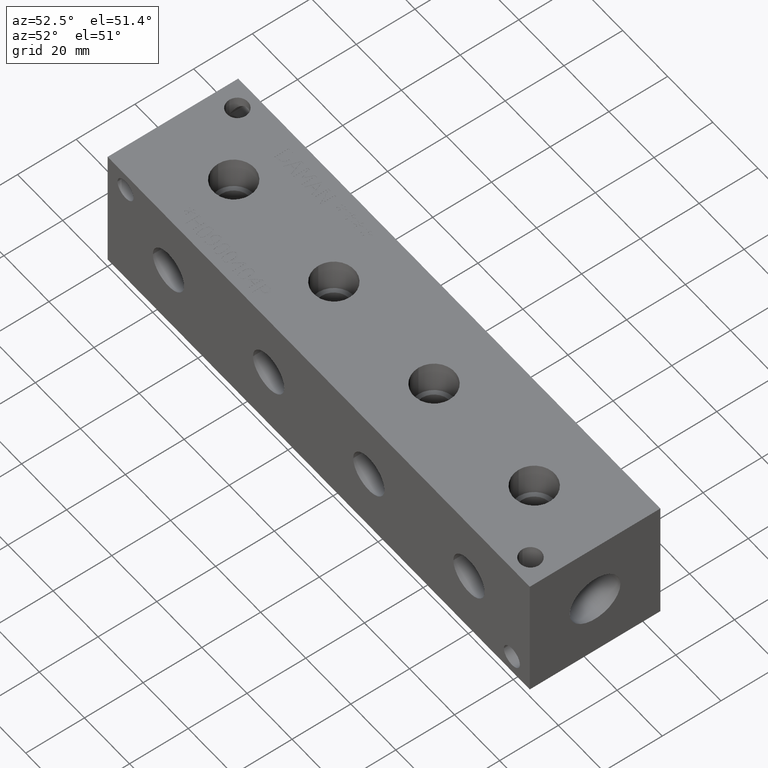
[diagram: clean part render]
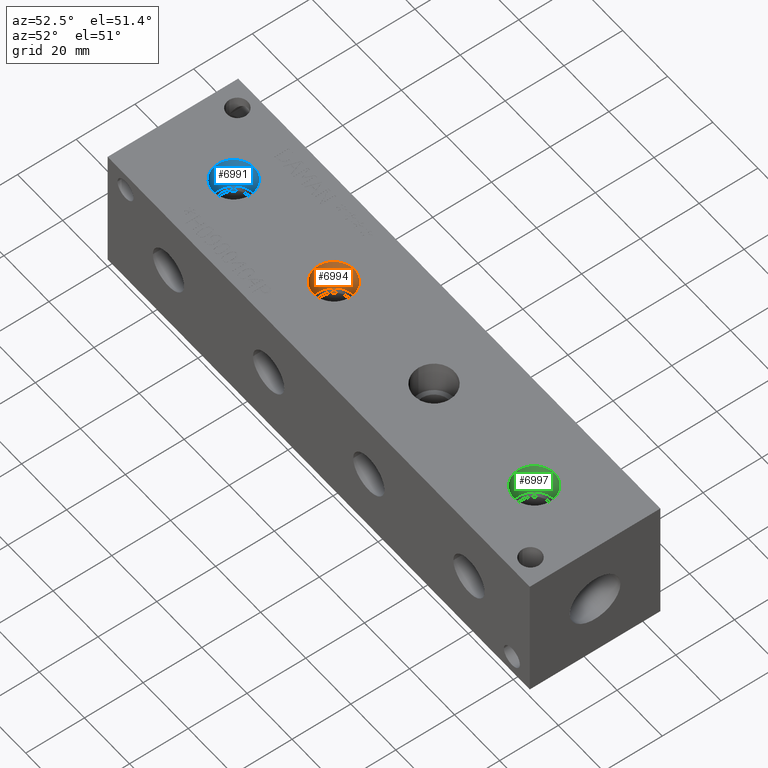
[diagram: same view with three faces highlighted in distinct colors, each labeled with its STEP entity id]
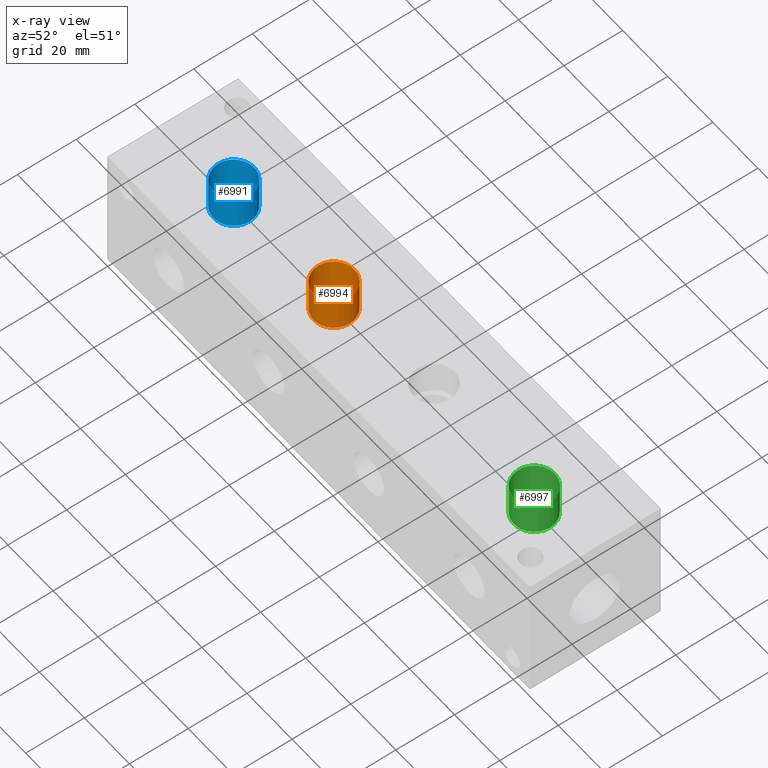
[diagram: x-ray of the same camera — body ghosted, the three highlighted faces saturated]
A machine part, auxiliary view with three faces highlighted in distinct colors.
The next image is the same camera in x-ray (body ghosted, the three faces saturated) — at least one of them is partly hidden behind the body in this view.
Their STEP definitions:

[orange] entity #6994 — the highlighted cylindrical surface (bore or boss wall) has radius 6.9342 mm, axis along (0, 0, 1).
#47=CYLINDRICAL_SURFACE('',#7335,6.9342);
#55=CIRCLE('',#7104,6.9342);
#56=CIRCLE('',#7105,6.9342);
#101=CIRCLE('',#7332,6.9342);
#102=CIRCLE('',#7333,6.9342);
#742=FACE_OUTER_BOUND('',#1132,.T.);
#1132=EDGE_LOOP('',(#6195,#6196,#6197,#6198,#6199,#6200));
#1847=LINE('',#12032,#2546);
#2546=VECTOR('',#8674,6.9342);
#3042=VERTEX_POINT('',#10595);
#3043=VERTEX_POINT('',#10596);
#3378=VERTEX_POINT('',#12025);
#3379=VERTEX_POINT('',#12026);
#3831=EDGE_CURVE('',#3042,#3043,#55,.T.);
#3832=EDGE_CURVE('',#3043,#3042,#56,.T.);
#4331=EDGE_CURVE('',#3378,#3379,#101,.T.);
#4332=EDGE_CURVE('',#3379,#3378,#102,.T.);
#4334=EDGE_CURVE('',#3043,#3379,#1847,.T.);
#6195=ORIENTED_EDGE('',*,*,#3831,.F.);
#6196=ORIENTED_EDGE('',*,*,#3832,.F.);
#6197=ORIENTED_EDGE('',*,*,#4334,.T.);
#6198=ORIENTED_EDGE('',*,*,#4331,.F.);
#6199=ORIENTED_EDGE('',*,*,#4332,.F.);
#6200=ORIENTED_EDGE('',*,*,#4334,.F.);
#6994=ADVANCED_FACE('',(#742),#47,.F.);
#7104=AXIS2_PLACEMENT_3D('',#10597,#7808,#7809);
#7105=AXIS2_PLACEMENT_3D('',#10598,#7810,#7811);
#7332=AXIS2_PLACEMENT_3D('',#12027,#8666,#8667);
#7333=AXIS2_PLACEMENT_3D('',#12028,#8668,#8669);
#7335=AXIS2_PLACEMENT_3D('',#12031,#8672,#8673);
#7808=DIRECTION('center_axis',(0.,0.,-1.));
#7809=DIRECTION('ref_axis',(1.,0.,0.));
#7810=DIRECTION('center_axis',(0.,0.,-1.));
#7811=DIRECTION('ref_axis',(1.,0.,0.));
#8666=DIRECTION('center_axis',(0.,0.,1.));
#8667=DIRECTION('ref_axis',(1.,0.,0.));
#8668=DIRECTION('center_axis',(0.,0.,1.));
#8669=DIRECTION('ref_axis',(1.,0.,0.));
#8672=DIRECTION('center_axis',(0.,0.,1.));
#8673=DIRECTION('ref_axis',(1.,0.,0.));
#8674=DIRECTION('',(0.,0.,-1.));
#10595=CARTESIAN_POINT('',(78.359,22.225,44.45));
#10596=CARTESIAN_POINT('',(64.4906,22.225,44.45));
#10597=CARTESIAN_POINT('Origin',(71.4248,22.225,44.45));
#10598=CARTESIAN_POINT('Origin',(71.4248,22.225,44.45));
#12025=CARTESIAN_POINT('',(78.359,22.225,33.0454));
#12026=CARTESIAN_POINT('',(64.4906,22.225,33.0454));
#12027=CARTESIAN_POINT('Origin',(71.4248,22.225,33.0454));
#12028=CARTESIAN_POINT('Origin',(71.4248,22.225,33.0454));
#12031=CARTESIAN_POINT('Origin',(71.4248,22.225,38.7477));
#12032=CARTESIAN_POINT('',(64.4906,22.225,38.7477));

[blue] entity #6991 — the highlighted cylindrical surface (bore or boss wall) has radius 6.9342 mm, axis along (0, 0, 1).
#45=CYLINDRICAL_SURFACE('',#7329,6.9342);
#57=CIRCLE('',#7106,6.9342);
#58=CIRCLE('',#7107,6.9342);
#98=CIRCLE('',#7326,6.9342);
#99=CIRCLE('',#7327,6.9342);
#739=FACE_OUTER_BOUND('',#1128,.T.);
#1128=EDGE_LOOP('',(#6179,#6180,#6181,#6182,#6183,#6184));
#1845=LINE('',#12021,#2544);
#2544=VECTOR('',#8660,6.9342);
#3044=VERTEX_POINT('',#10599);
#3045=VERTEX_POINT('',#10600);
#3375=VERTEX_POINT('',#12014);
#3376=VERTEX_POINT('',#12015);
#3833=EDGE_CURVE('',#3044,#3045,#57,.T.);
#3834=EDGE_CURVE('',#3045,#3044,#58,.T.);
#4326=EDGE_CURVE('',#3375,#3376,#98,.T.);
#4327=EDGE_CURVE('',#3376,#3375,#99,.T.);
#4329=EDGE_CURVE('',#3045,#3376,#1845,.T.);
#6179=ORIENTED_EDGE('',*,*,#3833,.F.);
#6180=ORIENTED_EDGE('',*,*,#3834,.F.);
#6181=ORIENTED_EDGE('',*,*,#4329,.T.);
#6182=ORIENTED_EDGE('',*,*,#4326,.F.);
#6183=ORIENTED_EDGE('',*,*,#4327,.F.);
#6184=ORIENTED_EDGE('',*,*,#4329,.F.);
#6991=ADVANCED_FACE('',(#739),#45,.F.);
#7106=AXIS2_PLACEMENT_3D('',#10601,#7812,#7813);
#7107=AXIS2_PLACEMENT_3D('',#10602,#7814,#7815);
#7326=AXIS2_PLACEMENT_3D('',#12016,#8652,#8653);
#7327=AXIS2_PLACEMENT_3D('',#12017,#8654,#8655);
#7329=AXIS2_PLACEMENT_3D('',#12020,#8658,#8659);
#7812=DIRECTION('center_axis',(0.,0.,-1.));
#7813=DIRECTION('ref_axis',(1.,0.,0.));
#7814=DIRECTION('center_axis',(0.,0.,-1.));
#7815=DIRECTION('ref_axis',(1.,0.,0.));
#8652=DIRECTION('center_axis',(0.,0.,1.));
#8653=DIRECTION('ref_axis',(1.,0.,0.));
#8654=DIRECTION('center_axis',(0.,0.,1.));
#8655=DIRECTION('ref_axis',(1.,0.,0.));
#8658=DIRECTION('center_axis',(0.,0.,1.));
#8659=DIRECTION('ref_axis',(1.,0.,0.));
#8660=DIRECTION('',(0.,0.,-1.));
#10599=CARTESIAN_POINT('',(33.909,22.225,44.45));
#10600=CARTESIAN_POINT('',(20.0406,22.225,44.45));
#10601=CARTESIAN_POINT('Origin',(26.9748,22.225,44.45));
#10602=CARTESIAN_POINT('Origin',(26.9748,22.225,44.45));
#12014=CARTESIAN_POINT('',(33.909,22.225,33.0454));
#12015=CARTESIAN_POINT('',(20.0406,22.225,33.0454));
#12016=CARTESIAN_POINT('Origin',(26.9748,22.225,33.0454));
#12017=CARTESIAN_POINT('Origin',(26.9748,22.225,33.0454));
#12020=CARTESIAN_POINT('Origin',(26.9748,22.225,38.7477));
#12021=CARTESIAN_POINT('',(20.0406,22.225,38.7477));

[green] entity #6997 — the highlighted cylindrical surface (bore or boss wall) has radius 6.9342 mm, axis along (0, 0, 1).
#49=CYLINDRICAL_SURFACE('',#7341,6.9342);
#53=CIRCLE('',#7102,6.9342);
#54=CIRCLE('',#7103,6.9342);
#104=CIRCLE('',#7338,6.9342);
#105=CIRCLE('',#7339,6.9342);
#745=FACE_OUTER_BOUND('',#1136,.T.);
#1136=EDGE_LOOP('',(#6211,#6212,#6213,#6214,#6215,#6216));
#1849=LINE('',#12043,#2548);
#2548=VECTOR('',#8688,6.9342);
#3040=VERTEX_POINT('',#10591);
#3041=VERTEX_POINT('',#10592);
#3381=VERTEX_POINT('',#12036);
#3382=VERTEX_POINT('',#12037);
#3829=EDGE_CURVE('',#3040,#3041,#53,.T.);
#3830=EDGE_CURVE('',#3041,#3040,#54,.T.);
#4336=EDGE_CURVE('',#3381,#3382,#104,.T.);
#4337=EDGE_CURVE('',#3382,#3381,#105,.T.);
#4339=EDGE_CURVE('',#3041,#3382,#1849,.T.);
#6211=ORIENTED_EDGE('',*,*,#3829,.F.);
#6212=ORIENTED_EDGE('',*,*,#3830,.F.);
#6213=ORIENTED_EDGE('',*,*,#4339,.T.);
#6214=ORIENTED_EDGE('',*,*,#4336,.F.);
#6215=ORIENTED_EDGE('',*,*,#4337,.F.);
#6216=ORIENTED_EDGE('',*,*,#4339,.F.);
#6997=ADVANCED_FACE('',(#745),#49,.F.);
#7102=AXIS2_PLACEMENT_3D('',#10593,#7804,#7805);
#7103=AXIS2_PLACEMENT_3D('',#10594,#7806,#7807);
#7338=AXIS2_PLACEMENT_3D('',#12038,#8680,#8681);
#7339=AXIS2_PLACEMENT_3D('',#12039,#8682,#8683);
#7341=AXIS2_PLACEMENT_3D('',#12042,#8686,#8687);
#7804=DIRECTION('center_axis',(0.,0.,-1.));
#7805=DIRECTION('ref_axis',(1.,0.,0.));
#7806=DIRECTION('center_axis',(0.,0.,-1.));
#7807=DIRECTION('ref_axis',(1.,0.,0.));
#8680=DIRECTION('center_axis',(0.,0.,1.));
#8681=DIRECTION('ref_axis',(1.,0.,0.));
#8682=DIRECTION('center_axis',(0.,0.,1.));
#8683=DIRECTION('ref_axis',(1.,0.,0.));
#8686=DIRECTION('center_axis',(0.,0.,1.));
#8687=DIRECTION('ref_axis',(1.,0.,0.));
#8688=DIRECTION('',(0.,0.,-1.));
#10591=CARTESIAN_POINT('',(167.259,22.225,44.45));
#10592=CARTESIAN_POINT('',(153.3906,22.225,44.45));
#10593=CARTESIAN_POINT('Origin',(160.3248,22.225,44.45));
#10594=CARTESIAN_POINT('Origin',(160.3248,22.225,44.45));
#12036=CARTESIAN_POINT('',(167.259,22.225,33.0454));
#12037=CARTESIAN_POINT('',(153.3906,22.225,33.0454));
#12038=CARTESIAN_POINT('Origin',(160.3248,22.225,33.0454));
#12039=CARTESIAN_POINT('Origin',(160.3248,22.225,33.0454));
#12042=CARTESIAN_POINT('Origin',(160.3248,22.225,38.7477));
#12043=CARTESIAN_POINT('',(153.3906,22.225,38.7477));